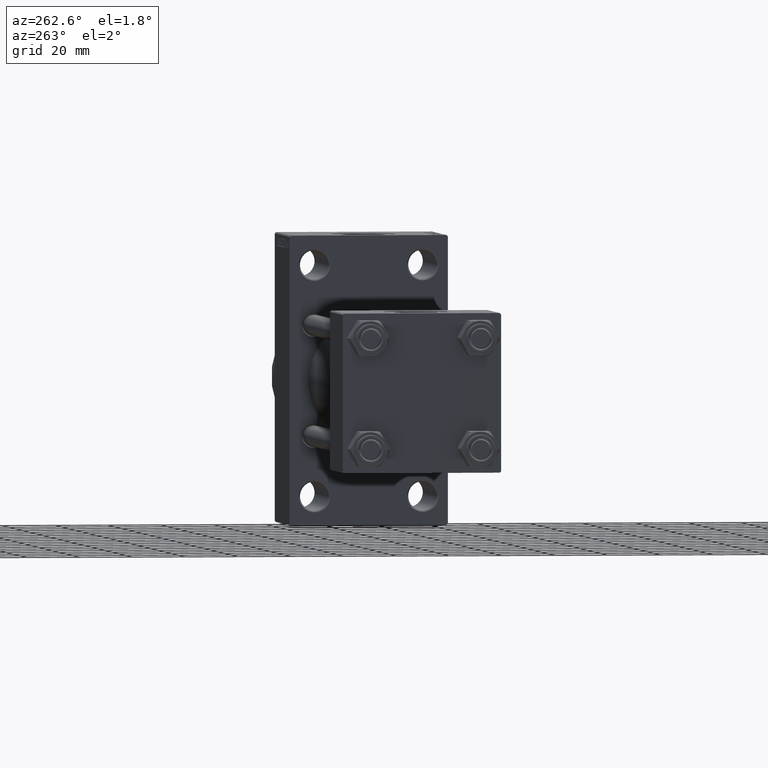
[diagram: clean part render]
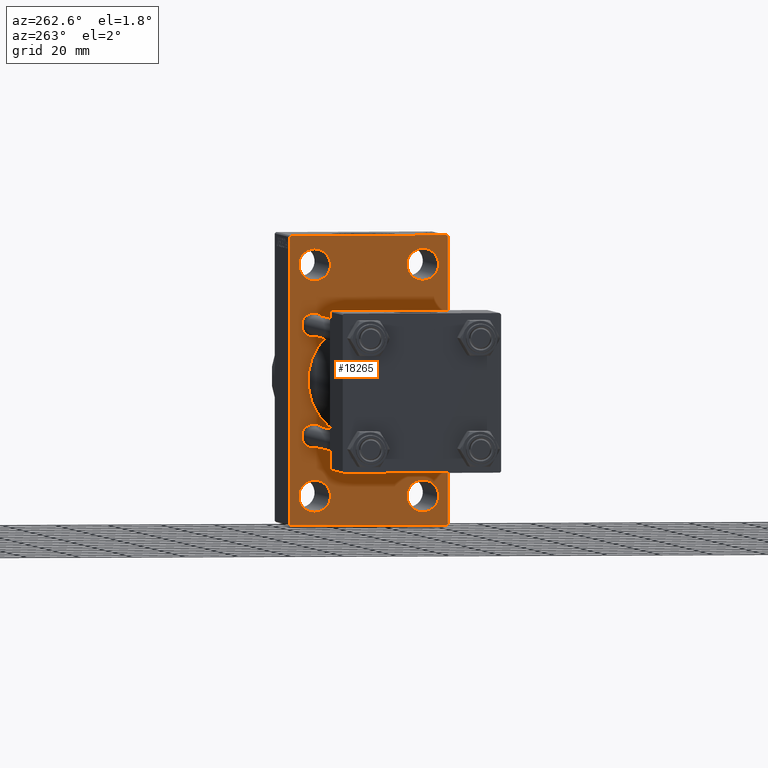
[diagram: same view with one face highlighted and labeled with its STEP entity id]
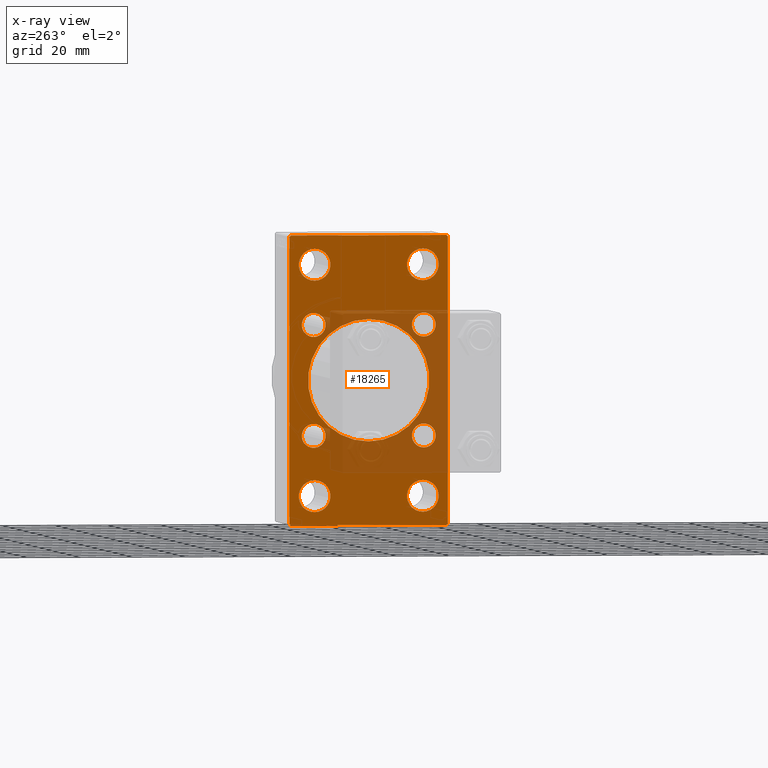
[diagram: x-ray of the same camera — body ghosted, the highlighted face saturated]
A machine part, auxiliary view. The second image highlights one B-rep face of the part: STEP entity #18265.
The next image is the same camera in x-ray: the body ghosted, the highlighted face saturated — about 29% of this face is hidden behind the body in this view.
In plain terms, the highlighted planar face has unit normal (-1, 0, 0).
Its self-contained STEP definition (entity closure, byte-faithful):
#125 = EDGE_CURVE ( 'NONE', #18043, #43027, #16043, .T. ) ;
#355 = EDGE_LOOP ( 'NONE', ( #27320, #36783 ) ) ;
#544 = DIRECTION ( 'NONE',  ( 1.000000000000000000, -0.000000000000000000, 0.000000000000000000 ) ) ;
#819 = EDGE_CURVE ( 'NONE', #44024, #20895, #9947, .T. ) ;
#846 = ORIENTED_EDGE ( 'NONE', *, *, #125, .T. ) ;
#953 = VERTEX_POINT ( 'NONE', #46336 ) ;
#1024 = LINE ( 'NONE', #30501, #34892 ) ;
#1328 = CARTESIAN_POINT ( 'NONE',  ( 155.0000000000000000, 29.49999999999999645, 54.49999999999999289 ) ) ;
#1500 = AXIS2_PLACEMENT_3D ( 'NONE', #9993, #28226, #32054 ) ;
#1525 = CARTESIAN_POINT ( 'NONE',  ( 155.0000000000000000, -20.50000000000000000, -49.49999999999992184 ) ) ;
#1842 = CARTESIAN_POINT ( 'NONE',  ( 155.0000000000000000, -30.00000000000000000, -53.99999999999998579 ) ) ;
#2488 = VERTEX_POINT ( 'NONE', #1328 ) ;
#2569 = DIRECTION ( 'NONE',  ( 1.000000000000000000, -0.000000000000000000, 0.000000000000000000 ) ) ;
#2672 = PLANE ( 'NONE',  #5776 ) ;
#2874 = CARTESIAN_POINT ( 'NONE',  ( 155.0000000000000000, -20.84999999999999076, -16.34999999999999787 ) ) ;
#2967 = AXIS2_PLACEMENT_3D ( 'NONE', #45030, #20064, #33983 ) ;
#3015 = DIRECTION ( 'NONE',  ( 0.000000000000000000, 0.000000000000000000, 1.000000000000000000 ) ) ;
#3148 = EDGE_CURVE ( 'NONE', #29332, #22891, #12316, .T. ) ;
#3155 = LINE ( 'NONE', #17772, #37714 ) ;
#3210 = EDGE_CURVE ( 'NONE', #45274, #28663, #45267, .T. ) ;
#3221 = CARTESIAN_POINT ( 'NONE',  ( 155.0000000000000000, 20.84999999999999787, 16.34999999999999432 ) ) ;
#3275 = DIRECTION ( 'NONE',  ( 1.000000000000000000, -0.000000000000000000, 0.000000000000000000 ) ) ;
#3277 = VERTEX_POINT ( 'NONE', #44581 ) ;
#3387 = FACE_BOUND ( 'NONE', #24661, .T. ) ;
#3729 = DIRECTION ( 'NONE',  ( 1.000000000000000000, -0.000000000000000000, 0.000000000000000000 ) ) ;
#3912 = CARTESIAN_POINT ( 'NONE',  ( 155.0000000000000000, -29.49999999999997513, 54.50000000000000000 ) ) ;
#4708 = ORIENTED_EDGE ( 'NONE', *, *, #36199, .T. ) ;
#4821 = EDGE_CURVE ( 'NONE', #43027, #18043, #36020, .T. ) ;
#4909 = VERTEX_POINT ( 'NONE', #9096 ) ;
#5348 = VECTOR ( 'NONE', #10301, 1000.000000000000114 ) ;
#5359 = CARTESIAN_POINT ( 'NONE',  ( 155.0000000000000000, 20.50000000000000000, 49.49999999999992184 ) ) ;
#5420 = ORIENTED_EDGE ( 'NONE', *, *, #35782, .F. ) ;
#5490 = EDGE_LOOP ( 'NONE', ( #37973, #32041, #5420, #8597, #25663, #4708, #8483, #37249 ) ) ;
#5776 = AXIS2_PLACEMENT_3D ( 'NONE', #17770, #39617, #46814 ) ;
#6038 = VECTOR ( 'NONE', #19471, 1000.000000000000114 ) ;
#6069 = CIRCLE ( 'NONE', #42112, 4.500000000000007105 ) ;
#6499 = FACE_BOUND ( 'NONE', #21066, .T. ) ;
#8138 = EDGE_LOOP ( 'NONE', ( #47126, #846 ) ) ;
#8316 = DIRECTION ( 'NONE',  ( 0.000000000000000000, 0.000000000000000000, -1.000000000000000000 ) ) ;
#8332 = CIRCLE ( 'NONE', #44342, 23.00000000000000000 ) ;
#8483 = ORIENTED_EDGE ( 'NONE', *, *, #44531, .T. ) ;
#8597 = ORIENTED_EDGE ( 'NONE', *, *, #38546, .T. ) ;
#8845 = EDGE_CURVE ( 'NONE', #28663, #45274, #45335, .T. ) ;
#8973 = CARTESIAN_POINT ( 'NONE',  ( 155.0000000000000000, -2.602085213965210642E-15, 0.000000000000000000 ) ) ;
#8985 = CARTESIAN_POINT ( 'NONE',  ( 155.0000000000000000, -20.50000000000000000, 49.49999999999992184 ) ) ;
#9096 = CARTESIAN_POINT ( 'NONE',  ( 155.0000000000000000, 20.84999999999999787, 25.35000000000000853 ) ) ;
#9413 = AXIS2_PLACEMENT_3D ( 'NONE', #31337, #2569, #13361 ) ;
#9778 = VERTEX_POINT ( 'NONE', #27736 ) ;
#9819 = LINE ( 'NONE', #35260, #5348 ) ;
#9947 = CIRCLE ( 'NONE', #34474, 23.00000000000000000 ) ;
#9993 = CARTESIAN_POINT ( 'NONE',  ( 155.0000000000000000, 20.50000000000000000, 43.50000000000000000 ) ) ;
#9998 = EDGE_LOOP ( 'NONE', ( #39142, #33645 ) ) ;
#10005 = DIRECTION ( 'NONE',  ( 1.000000000000000000, -0.000000000000000000, 0.000000000000000000 ) ) ;
#10072 = CARTESIAN_POINT ( 'NONE',  ( 155.0000000000000000, 29.99999999999999645, -54.49999999999999289 ) ) ;
#10301 = DIRECTION ( 'NONE',  ( -0.000000000000000000, 0.7071067811865451302, 0.7071067811865500152 ) ) ;
#10340 = FACE_BOUND ( 'NONE', #8138, .T. ) ;
#10742 = CIRCLE ( 'NONE', #33596, 4.500000000000007105 ) ;
#10976 = CARTESIAN_POINT ( 'NONE',  ( 155.0000000000000000, 29.99999999999999645, -53.99999999999999289 ) ) ;
#11176 = CARTESIAN_POINT ( 'NONE',  ( 155.0000000000000000, -20.84999999999999076, 20.85000000000000497 ) ) ;
#11267 = VERTEX_POINT ( 'NONE', #1525 ) ;
#11609 = CARTESIAN_POINT ( 'NONE',  ( 155.0000000000000000, -42.00000000000051159, -41.99999999999905498 ) ) ;
#12176 = EDGE_CURVE ( 'NONE', #31201, #11267, #29367, .T. ) ;
#12316 = CIRCLE ( 'NONE', #32890, 4.500000000000007105 ) ;
#12318 = VERTEX_POINT ( 'NONE', #5359 ) ;
#12968 = EDGE_CURVE ( 'NONE', #25973, #30670, #16688, .T. ) ;
#13361 = DIRECTION ( 'NONE',  ( 0.000000000000000000, 0.000000000000000000, 1.000000000000000000 ) ) ;
#13640 = CARTESIAN_POINT ( 'NONE',  ( 155.0000000000000000, -30.00000000000000000, 53.99999999999997158 ) ) ;
#13710 = EDGE_LOOP ( 'NONE', ( #34743, #16869 ) ) ;
#13800 = DIRECTION ( 'NONE',  ( 1.000000000000000000, -0.000000000000000000, 0.000000000000000000 ) ) ;
#13898 = CARTESIAN_POINT ( 'NONE',  ( 155.0000000000000000, -20.84999999999999076, -20.85000000000000497 ) ) ;
#13911 = ORIENTED_EDGE ( 'NONE', *, *, #8845, .T. ) ;
#14038 = DIRECTION ( 'NONE',  ( 0.000000000000000000, 0.000000000000000000, 1.000000000000000000 ) ) ;
#14120 = CARTESIAN_POINT ( 'NONE',  ( 155.0000000000000000, 20.50000000000000000, -37.50000000000007816 ) ) ;
#14243 = AXIS2_PLACEMENT_3D ( 'NONE', #33615, #544, #40833 ) ;
#14506 = DIRECTION ( 'NONE',  ( 0.000000000000000000, -0.7071067811865352493, 0.7071067811865597852 ) ) ;
#14549 = CARTESIAN_POINT ( 'NONE',  ( 155.0000000000000000, 20.84999999999999787, 20.85000000000000142 ) ) ;
#14827 = DIRECTION ( 'NONE',  ( 1.000000000000000000, -0.000000000000000000, 0.000000000000000000 ) ) ;
#15160 = VERTEX_POINT ( 'NONE', #27643 ) ;
#15224 = CARTESIAN_POINT ( 'NONE',  ( 155.0000000000000000, 20.50000000000000000, 37.50000000000007816 ) ) ;
#15919 = EDGE_CURVE ( 'NONE', #22891, #29332, #25646, .T. ) ;
#16043 = CIRCLE ( 'NONE', #19882, 5.999999999999921840 ) ;
#16180 = VERTEX_POINT ( 'NONE', #3221 ) ;
#16688 = LINE ( 'NONE', #31554, #28611 ) ;
#16869 = ORIENTED_EDGE ( 'NONE', *, *, #15919, .T. ) ;
#17349 = CIRCLE ( 'NONE', #40347, 4.500000000000007105 ) ;
#17427 = DIRECTION ( 'NONE',  ( 1.000000000000000000, -0.000000000000000000, 0.000000000000000000 ) ) ;
#17441 = DIRECTION ( 'NONE',  ( 0.000000000000000000, 0.000000000000000000, 1.000000000000000000 ) ) ;
#17770 = CARTESIAN_POINT ( 'NONE',  ( 155.0000000000000000, 0.000000000000000000, 0.000000000000000000 ) ) ;
#17772 = CARTESIAN_POINT ( 'NONE',  ( 155.0000000000000000, 29.99999999999999645, 54.49999999999999289 ) ) ;
#17855 = CIRCLE ( 'NONE', #9413, 4.500000000000007105 ) ;
#18043 = VERTEX_POINT ( 'NONE', #31801 ) ;
#18108 = EDGE_CURVE ( 'NONE', #2488, #22878, #1024, .T. ) ;
#18265 = ADVANCED_FACE ( 'NONE', ( #6499, #32155, #10340, #3387, #21864, #31921, #46571, #32400, #36007, #21142 ), #2672, .T. ) ;
#18562 = DIRECTION ( 'NONE',  ( 0.000000000000000000, 0.000000000000000000, 1.000000000000000000 ) ) ;
#18578 = EDGE_LOOP ( 'NONE', ( #30202, #32501 ) ) ;
#19140 = DIRECTION ( 'NONE',  ( 1.000000000000000000, -0.000000000000000000, 0.000000000000000000 ) ) ;
#19471 = DIRECTION ( 'NONE',  ( 0.000000000000000000, 0.7071067811865474617, -0.7071067811865474617 ) ) ;
#19594 = LINE ( 'NONE', #23203, #29873 ) ;
#19882 = AXIS2_PLACEMENT_3D ( 'NONE', #35943, #14827, #46745 ) ;
#20064 = DIRECTION ( 'NONE',  ( 1.000000000000000000, -0.000000000000000000, 0.000000000000000000 ) ) ;
#20696 = VECTOR ( 'NONE', #14506, 1000.000000000000000 ) ;
#20895 = VERTEX_POINT ( 'NONE', #42180 ) ;
#21066 = EDGE_LOOP ( 'NONE', ( #21234, #13911 ) ) ;
#21142 = FACE_OUTER_BOUND ( 'NONE', #5490, .T. ) ;
#21167 = DIRECTION ( 'NONE',  ( 1.000000000000000000, -0.000000000000000000, 0.000000000000000000 ) ) ;
#21234 = ORIENTED_EDGE ( 'NONE', *, *, #3210, .T. ) ;
#21620 = CARTESIAN_POINT ( 'NONE',  ( 155.0000000000000000, 29.99999999999999645, 53.99999999999999289 ) ) ;
#21679 = CARTESIAN_POINT ( 'NONE',  ( 155.0000000000000000, -20.84999999999999076, -25.35000000000001208 ) ) ;
#21864 = FACE_BOUND ( 'NONE', #355, .T. ) ;
#21930 = CIRCLE ( 'NONE', #14243, 5.999999999999921840 ) ;
#22183 = CIRCLE ( 'NONE', #1500, 5.999999999999921840 ) ;
#22332 = VERTEX_POINT ( 'NONE', #1842 ) ;
#22614 = CARTESIAN_POINT ( 'NONE',  ( 155.0000000000000000, 41.99999999999998579, 41.99999999999998579 ) ) ;
#22666 = DIRECTION ( 'NONE',  ( 0.000000000000000000, 0.000000000000000000, -1.000000000000000000 ) ) ;
#22772 = ORIENTED_EDGE ( 'NONE', *, *, #819, .T. ) ;
#22878 = VERTEX_POINT ( 'NONE', #3912 ) ;
#22891 = VERTEX_POINT ( 'NONE', #21679 ) ;
#22897 = DIRECTION ( 'NONE',  ( 1.000000000000000000, 0.000000000000000000, 0.000000000000000000 ) ) ;
#23042 = VERTEX_POINT ( 'NONE', #21620 ) ;
#23203 = CARTESIAN_POINT ( 'NONE',  ( 155.0000000000000000, -30.00000000000000000, 54.50000000000000000 ) ) ;
#23382 = VERTEX_POINT ( 'NONE', #13640 ) ;
#23622 = DIRECTION ( 'NONE',  ( 0.000000000000000000, 0.000000000000000000, -1.000000000000000000 ) ) ;
#23641 = CARTESIAN_POINT ( 'NONE',  ( 155.0000000000000000, 20.84999999999999787, -20.85000000000000142 ) ) ;
#24129 = AXIS2_PLACEMENT_3D ( 'NONE', #35919, #10005, #17441 ) ;
#24661 = EDGE_LOOP ( 'NONE', ( #32093, #36460 ) ) ;
#24682 = CARTESIAN_POINT ( 'NONE',  ( 155.0000000000000000, -20.84999999999999076, 20.85000000000000497 ) ) ;
#24776 = AXIS2_PLACEMENT_3D ( 'NONE', #46668, #13800, #14038 ) ;
#24842 = CARTESIAN_POINT ( 'NONE',  ( 155.0000000000000000, -20.50000000000000000, 43.50000000000000000 ) ) ;
#25017 = EDGE_CURVE ( 'NONE', #30670, #3277, #31183, .T. ) ;
#25302 = AXIS2_PLACEMENT_3D ( 'NONE', #39402, #21167, #35563 ) ;
#25645 = DIRECTION ( 'NONE',  ( 0.000000000000000000, 0.000000000000000000, 1.000000000000000000 ) ) ;
#25646 = CIRCLE ( 'NONE', #24129, 4.500000000000007105 ) ;
#25663 = ORIENTED_EDGE ( 'NONE', *, *, #18108, .F. ) ;
#25724 = CARTESIAN_POINT ( 'NONE',  ( 155.0000000000000000, -20.50000000000000000, -37.50000000000007816 ) ) ;
#25973 = VERTEX_POINT ( 'NONE', #10976 ) ;
#26593 = EDGE_CURVE ( 'NONE', #11267, #31201, #21930, .T. ) ;
#27050 = EDGE_CURVE ( 'NONE', #953, #9778, #17349, .T. ) ;
#27320 = ORIENTED_EDGE ( 'NONE', *, *, #27050, .T. ) ;
#27376 = CIRCLE ( 'NONE', #35811, 4.500000000000007105 ) ;
#27643 = CARTESIAN_POINT ( 'NONE',  ( 155.0000000000000000, 20.84999999999999787, -16.34999999999999432 ) ) ;
#27683 = DIRECTION ( 'NONE',  ( 1.000000000000000000, 0.000000000000000000, 0.000000000000000000 ) ) ;
#27736 = CARTESIAN_POINT ( 'NONE',  ( 155.0000000000000000, -20.84999999999999076, 16.34999999999999787 ) ) ;
#27966 = DIRECTION ( 'NONE',  ( -0.000000000000000000, -0.7071067811865672237, -0.7071067811865279218 ) ) ;
#28226 = DIRECTION ( 'NONE',  ( 1.000000000000000000, -0.000000000000000000, 0.000000000000000000 ) ) ;
#28427 = CARTESIAN_POINT ( 'NONE',  ( 155.0000000000000000, 29.49999999999996803, -54.49999999999999289 ) ) ;
#28531 = DIRECTION ( 'NONE',  ( 1.000000000000000000, -0.000000000000000000, 0.000000000000000000 ) ) ;
#28611 = VECTOR ( 'NONE', #27966, 1000.000000000000000 ) ;
#28644 = CARTESIAN_POINT ( 'NONE',  ( 155.0000000000000000, -20.50000000000000000, 37.50000000000007816 ) ) ;
#28663 = VERTEX_POINT ( 'NONE', #28644 ) ;
#28766 = VECTOR ( 'NONE', #42239, 1000.000000000000000 ) ;
#28814 = EDGE_CURVE ( 'NONE', #16180, #4909, #27376, .T. ) ;
#28930 = DIRECTION ( 'NONE',  ( 0.000000000000000000, -1.000000000000000000, 1.156482317317871478E-16 ) ) ;
#29332 = VERTEX_POINT ( 'NONE', #2874 ) ;
#29367 = CIRCLE ( 'NONE', #24776, 5.999999999999921840 ) ;
#29566 = ORIENTED_EDGE ( 'NONE', *, *, #45873, .T. ) ;
#29873 = VECTOR ( 'NONE', #8316, 1000.000000000000000 ) ;
#30118 = DIRECTION ( 'NONE',  ( 0.000000000000000000, 0.000000000000000000, 1.000000000000000000 ) ) ;
#30202 = ORIENTED_EDGE ( 'NONE', *, *, #12176, .T. ) ;
#30501 = CARTESIAN_POINT ( 'NONE',  ( 155.0000000000000000, 29.99999999999999645, 54.49999999999999289 ) ) ;
#30670 = VERTEX_POINT ( 'NONE', #28427 ) ;
#31183 = LINE ( 'NONE', #10072, #28766 ) ;
#31201 = VERTEX_POINT ( 'NONE', #25724 ) ;
#31337 = CARTESIAN_POINT ( 'NONE',  ( 155.0000000000000000, 20.84999999999999787, -20.85000000000000142 ) ) ;
#31554 = CARTESIAN_POINT ( 'NONE',  ( 155.0000000000000000, 41.99999999999915445, -42.00000000000149214 ) ) ;
#31801 = CARTESIAN_POINT ( 'NONE',  ( 155.0000000000000000, 20.50000000000000000, -49.49999999999992184 ) ) ;
#31819 = EDGE_CURVE ( 'NONE', #20895, #44024, #8332, .T. ) ;
#31836 = VERTEX_POINT ( 'NONE', #15224 ) ;
#31921 = FACE_BOUND ( 'NONE', #9998, .T. ) ;
#32041 = ORIENTED_EDGE ( 'NONE', *, *, #39555, .T. ) ;
#32054 = DIRECTION ( 'NONE',  ( 0.000000000000000000, 0.000000000000000000, 1.000000000000000000 ) ) ;
#32055 = DIRECTION ( 'NONE',  ( 0.000000000000000000, 0.000000000000000000, 1.000000000000000000 ) ) ;
#32093 = ORIENTED_EDGE ( 'NONE', *, *, #35689, .T. ) ;
#32155 = FACE_BOUND ( 'NONE', #18578, .T. ) ;
#32400 = FACE_BOUND ( 'NONE', #13710, .T. ) ;
#32403 = DIRECTION ( 'NONE',  ( 0.000000000000000000, 0.000000000000000000, -1.000000000000000000 ) ) ;
#32475 = DIRECTION ( 'NONE',  ( 1.000000000000000000, -0.000000000000000000, 0.000000000000000000 ) ) ;
#32501 = ORIENTED_EDGE ( 'NONE', *, *, #26593, .T. ) ;
#32890 = AXIS2_PLACEMENT_3D ( 'NONE', #13898, #28531, #25645 ) ;
#33101 = CARTESIAN_POINT ( 'NONE',  ( 155.0000000000000000, 20.84999999999999787, -25.35000000000000853 ) ) ;
#33437 = LINE ( 'NONE', #11609, #20696 ) ;
#33596 = AXIS2_PLACEMENT_3D ( 'NONE', #23641, #37554, #30118 ) ;
#33615 = CARTESIAN_POINT ( 'NONE',  ( 155.0000000000000000, -20.50000000000000000, -43.50000000000000000 ) ) ;
#33645 = ORIENTED_EDGE ( 'NONE', *, *, #28814, .T. ) ;
#33983 = DIRECTION ( 'NONE',  ( 0.000000000000000000, 0.000000000000000000, 1.000000000000000000 ) ) ;
#34220 = EDGE_CURVE ( 'NONE', #9778, #953, #42860, .T. ) ;
#34352 = ORIENTED_EDGE ( 'NONE', *, *, #31819, .T. ) ;
#34474 = AXIS2_PLACEMENT_3D ( 'NONE', #8973, #27683, #23622 ) ;
#34743 = ORIENTED_EDGE ( 'NONE', *, *, #3148, .T. ) ;
#34892 = VECTOR ( 'NONE', #28930, 1000.000000000000000 ) ;
#34902 = EDGE_CURVE ( 'NONE', #31836, #12318, #22183, .T. ) ;
#35040 = EDGE_CURVE ( 'NONE', #40883, #15160, #10742, .T. ) ;
#35260 = CARTESIAN_POINT ( 'NONE',  ( 155.0000000000000000, -42.00000000000008527, 41.99999999999979394 ) ) ;
#35371 = AXIS2_PLACEMENT_3D ( 'NONE', #24842, #3729, #3015 ) ;
#35563 = DIRECTION ( 'NONE',  ( 0.000000000000000000, 0.000000000000000000, 1.000000000000000000 ) ) ;
#35673 = CARTESIAN_POINT ( 'NONE',  ( 155.0000000000000000, 2.146024240737016609E-16, -23.00000000000000000 ) ) ;
#35689 = EDGE_CURVE ( 'NONE', #12318, #31836, #38308, .T. ) ;
#35782 = EDGE_CURVE ( 'NONE', #23382, #22332, #19594, .T. ) ;
#35811 = AXIS2_PLACEMENT_3D ( 'NONE', #40866, #32475, #18562 ) ;
#35919 = CARTESIAN_POINT ( 'NONE',  ( 155.0000000000000000, -20.84999999999999076, -20.85000000000000497 ) ) ;
#35943 = CARTESIAN_POINT ( 'NONE',  ( 155.0000000000000000, 20.50000000000000000, -43.50000000000000000 ) ) ;
#36007 = FACE_BOUND ( 'NONE', #44223, .T. ) ;
#36020 = CIRCLE ( 'NONE', #25302, 5.999999999999921840 ) ;
#36199 = EDGE_CURVE ( 'NONE', #2488, #23042, #41309, .T. ) ;
#36460 = ORIENTED_EDGE ( 'NONE', *, *, #34902, .T. ) ;
#36733 = AXIS2_PLACEMENT_3D ( 'NONE', #11176, #3275, #40451 ) ;
#36783 = ORIENTED_EDGE ( 'NONE', *, *, #34220, .T. ) ;
#36910 = CARTESIAN_POINT ( 'NONE',  ( 155.0000000000000000, -20.50000000000000000, 43.50000000000000000 ) ) ;
#37249 = ORIENTED_EDGE ( 'NONE', *, *, #12968, .T. ) ;
#37554 = DIRECTION ( 'NONE',  ( 1.000000000000000000, -0.000000000000000000, 0.000000000000000000 ) ) ;
#37714 = VECTOR ( 'NONE', #32403, 1000.000000000000000 ) ;
#37973 = ORIENTED_EDGE ( 'NONE', *, *, #25017, .T. ) ;
#38031 = EDGE_CURVE ( 'NONE', #4909, #16180, #6069, .T. ) ;
#38308 = CIRCLE ( 'NONE', #2967, 5.999999999999921840 ) ;
#38546 = EDGE_CURVE ( 'NONE', #23382, #22878, #9819, .T. ) ;
#39142 = ORIENTED_EDGE ( 'NONE', *, *, #38031, .T. ) ;
#39402 = CARTESIAN_POINT ( 'NONE',  ( 155.0000000000000000, 20.50000000000000000, -43.50000000000000000 ) ) ;
#39555 = EDGE_CURVE ( 'NONE', #3277, #22332, #33437, .T. ) ;
#39617 = DIRECTION ( 'NONE',  ( -1.000000000000000000, 0.000000000000000000, -0.000000000000000000 ) ) ;
#40347 = AXIS2_PLACEMENT_3D ( 'NONE', #24682, #46756, #42442 ) ;
#40451 = DIRECTION ( 'NONE',  ( 0.000000000000000000, 0.000000000000000000, 1.000000000000000000 ) ) ;
#40518 = DIRECTION ( 'NONE',  ( 0.000000000000000000, 0.000000000000000000, 1.000000000000000000 ) ) ;
#40833 = DIRECTION ( 'NONE',  ( 0.000000000000000000, 0.000000000000000000, 1.000000000000000000 ) ) ;
#40866 = CARTESIAN_POINT ( 'NONE',  ( 155.0000000000000000, 20.84999999999999787, 20.85000000000000142 ) ) ;
#40883 = VERTEX_POINT ( 'NONE', #33101 ) ;
#41309 = LINE ( 'NONE', #22614, #6038 ) ;
#41370 = CARTESIAN_POINT ( 'NONE',  ( 155.0000000000000000, -2.602085213965210642E-15, 0.000000000000000000 ) ) ;
#42112 = AXIS2_PLACEMENT_3D ( 'NONE', #14549, #17427, #32055 ) ;
#42180 = CARTESIAN_POINT ( 'NONE',  ( 155.0000000000000000, -2.602085213965210642E-15, 23.00000000000000000 ) ) ;
#42239 = DIRECTION ( 'NONE',  ( 0.000000000000000000, -1.000000000000000000, -1.156482317317871478E-16 ) ) ;
#42442 = DIRECTION ( 'NONE',  ( 0.000000000000000000, 0.000000000000000000, 1.000000000000000000 ) ) ;
#42860 = CIRCLE ( 'NONE', #36733, 4.500000000000007105 ) ;
#43027 = VERTEX_POINT ( 'NONE', #14120 ) ;
#44024 = VERTEX_POINT ( 'NONE', #35673 ) ;
#44223 = EDGE_LOOP ( 'NONE', ( #34352, #22772 ) ) ;
#44342 = AXIS2_PLACEMENT_3D ( 'NONE', #41370, #22897, #22666 ) ;
#44531 = EDGE_CURVE ( 'NONE', #23042, #25973, #3155, .T. ) ;
#44581 = CARTESIAN_POINT ( 'NONE',  ( 155.0000000000000000, -29.50000000000000355, -54.50000000000000000 ) ) ;
#45030 = CARTESIAN_POINT ( 'NONE',  ( 155.0000000000000000, 20.50000000000000000, 43.50000000000000000 ) ) ;
#45267 = CIRCLE ( 'NONE', #46023, 5.999999999999921840 ) ;
#45274 = VERTEX_POINT ( 'NONE', #8985 ) ;
#45335 = CIRCLE ( 'NONE', #35371, 5.999999999999921840 ) ;
#45873 = EDGE_CURVE ( 'NONE', #15160, #40883, #17855, .T. ) ;
#46023 = AXIS2_PLACEMENT_3D ( 'NONE', #36910, #19140, #40518 ) ;
#46278 = ORIENTED_EDGE ( 'NONE', *, *, #35040, .T. ) ;
#46336 = CARTESIAN_POINT ( 'NONE',  ( 155.0000000000000000, -20.84999999999999076, 25.35000000000001208 ) ) ;
#46571 = FACE_BOUND ( 'NONE', #46622, .T. ) ;
#46622 = EDGE_LOOP ( 'NONE', ( #29566, #46278 ) ) ;
#46668 = CARTESIAN_POINT ( 'NONE',  ( 155.0000000000000000, -20.50000000000000000, -43.50000000000000000 ) ) ;
#46745 = DIRECTION ( 'NONE',  ( 0.000000000000000000, 0.000000000000000000, 1.000000000000000000 ) ) ;
#46756 = DIRECTION ( 'NONE',  ( 1.000000000000000000, -0.000000000000000000, 0.000000000000000000 ) ) ;
#46814 = DIRECTION ( 'NONE',  ( -0.000000000000000000, 0.000000000000000000, 1.000000000000000000 ) ) ;
#47126 = ORIENTED_EDGE ( 'NONE', *, *, #4821, .T. ) ;